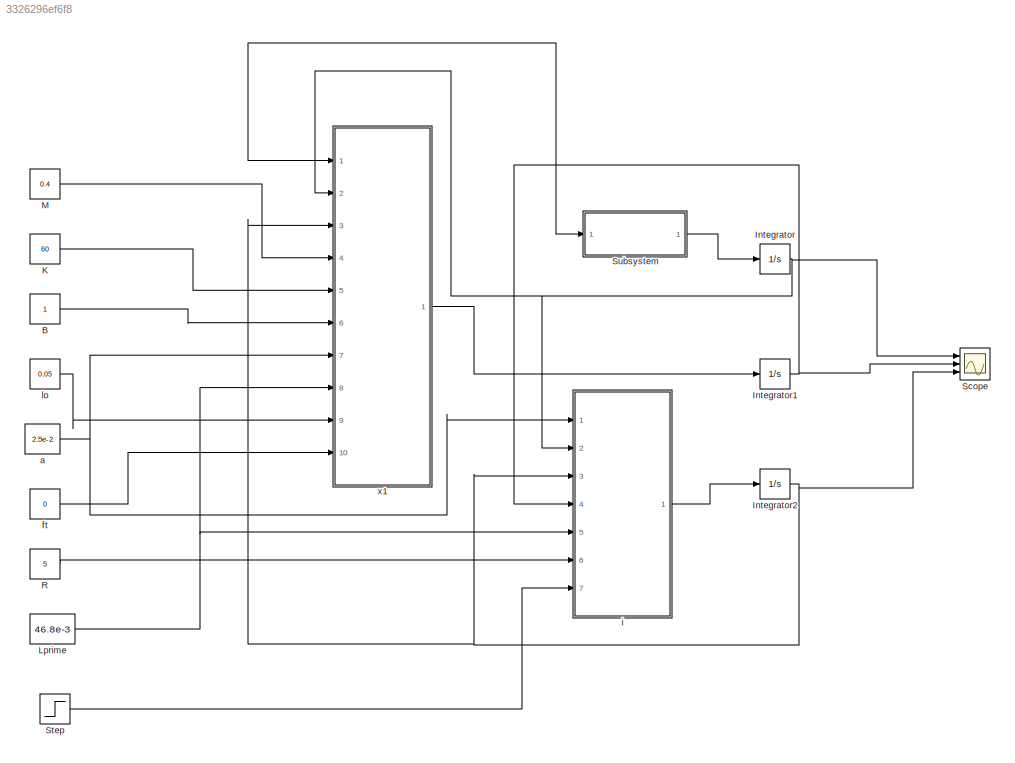
MODEL slx_3326296ef6f8
KIND model
CONFIG AbsTol = auto
CONFIG EnableMultiTasking = off
CONFIG FixedStep = auto
CONFIG MaxStep = auto
CONFIG MinStep = auto
CONFIG RelTol = 1e-3
CONFIG SampleTimeConstraint = Unconstrained
CONFIG Solver = VariableStepAuto
CONFIG SolverName = VariableStepAuto
CONFIG StartTime = 0.0
CONFIG StopTime = 10.0
BLOCK [Constant] B
BLOCK [Integrator] Integrator
  Ports = [1, 1]
BLOCK [Integrator] Integrator1
  Ports = [1, 1]
BLOCK [Integrator] Integrator2
  Ports = [1, 1]
BLOCK [Constant] K
  Value = 60
BLOCK [Constant] Lprime
  Value = 46.8e-3
BLOCK [Constant] M
  Value = 0.4
BLOCK [Constant] R
  Value = 5
BLOCK [Scope] Scope
  NumInputPorts = 3
  Ports = [3]
  ScopeSpecificationString = Simulink.scopes.TimeScopeBlockCfg('CurrentConfiguration', extmgr.ConfigurationSet(extmgr.Configuration('Core','General UI',true),extmgr.Configuration('Core','Source UI',true),extmgr.Configuration('Sources','WiredSimulink',true),extmgr.Configuration('Visuals','Time Domain',true,'SerializedDisplays',{struct('MinYLimReal','-1.00000','MaxYLimReal','1.00000','YLabelReal','','MinYLimMag','0.00000','MaxY...<+1387ch>
BLOCK [Step] Step
  SampleTime = 0
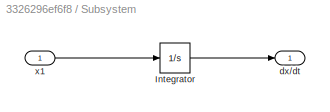
BLOCK [SubSystem] Subsystem
  Ports = [1, 1]
  RequestExecContextInheritance = off
  Variant = off
BLOCK [Integrator] Subsystem/Integrator
  Ports = [1, 1]
BLOCK [Outport] Subsystem/dx//dt
  IconDisplay = Port number
BLOCK [Inport] Subsystem/x1
  IconDisplay = Port number
BLOCK [Constant] a
  Value = 2.5e-2
BLOCK [Constant] ft
  Value = 0
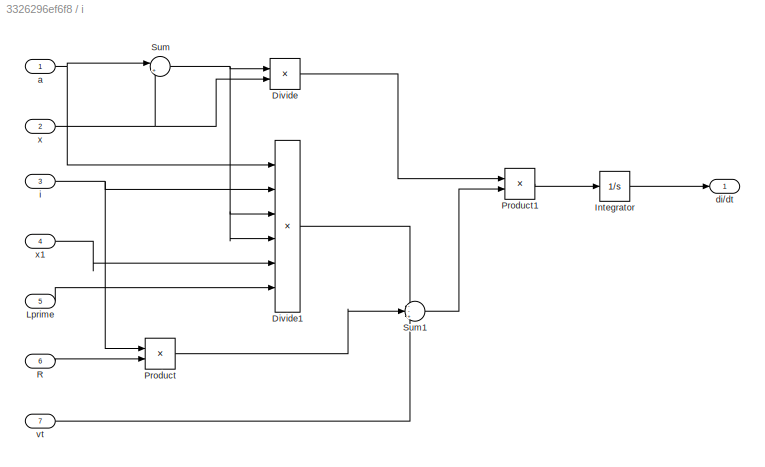
BLOCK [SubSystem] i
  Ports = [7, 1]
  RequestExecContextInheritance = off
  Variant = off
BLOCK [Product] i/Divide
  InputSameDT = off
  Inputs = */
  OutDataTypeStr = Inherit: Inherit via internal rule
  Ports = [2, 1]
  RndMeth = Floor
  SaturateOnIntegerOverflow = off
BLOCK [Product] i/Divide1
  InputSameDT = off
  Inputs = **//**
  OutDataTypeStr = Inherit: Inherit via internal rule
  Ports = [6, 1]
  RndMeth = Floor
  SaturateOnIntegerOverflow = off
BLOCK [Integrator] i/Integrator
  Ports = [1, 1]
BLOCK [Inport] i/Lprime
  IconDisplay = Port number
  Port = 5
BLOCK [Product] i/Product
  InputSameDT = off
  OutDataTypeStr = Inherit: Inherit via internal rule
  Ports = [2, 1]
  RndMeth = Floor
  SaturateOnIntegerOverflow = off
BLOCK [Product] i/Product1
  InputSameDT = off
  OutDataTypeStr = Inherit: Inherit via internal rule
  Ports = [2, 1]
  RndMeth = Floor
  SaturateOnIntegerOverflow = off
BLOCK [Inport] i/R
  IconDisplay = Port number
  Port = 6
BLOCK [Sum] i/Sum
  IconShape = round
  InputSameDT = off
  Inputs = |++
  OutDataTypeStr = Inherit: Inherit via internal rule
  Ports = [2, 1]
  SaturateOnIntegerOverflow = off
BLOCK [Sum] i/Sum1
  IconShape = round
  InputSameDT = off
  Inputs = --+
  OutDataTypeStr = Inherit: Inherit via internal rule
  Ports = [3, 1]
  SaturateOnIntegerOverflow = off
BLOCK [Inport] i/a
  IconDisplay = Port number
BLOCK [Outport] i/di//dt
  IconDisplay = Port number
BLOCK [Inport] i/i
  IconDisplay = Port number
  Port = 3
BLOCK [Inport] i/vt
  IconDisplay = Port number
  Port = 7
BLOCK [Inport] i/x
  IconDisplay = Port number
  Port = 2
BLOCK [Inport] i/x1
  IconDisplay = Port number
  Port = 4
BLOCK [Constant] lo
  Value = 0.05
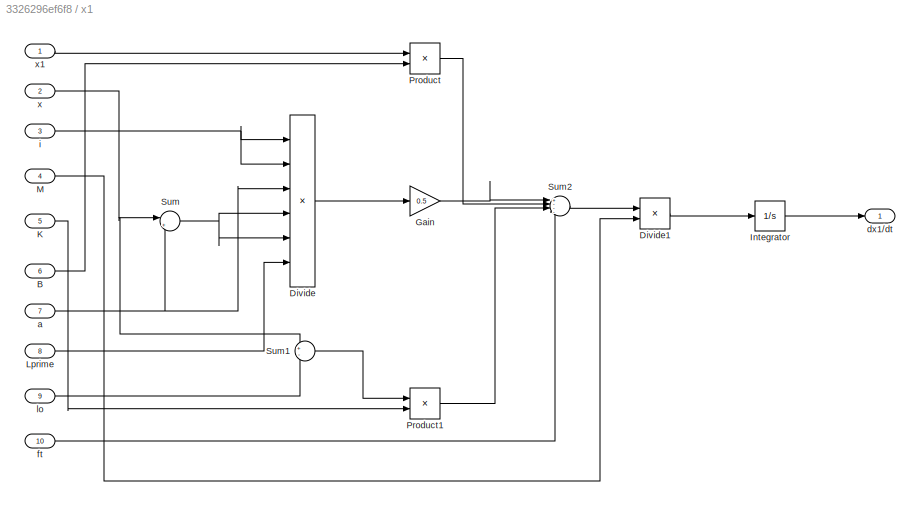
BLOCK [SubSystem] x1
  Ports = [10, 1]
  RequestExecContextInheritance = off
  Variant = off
BLOCK [Inport] x1/B
  IconDisplay = Port number
  Port = 6
BLOCK [Product] x1/Divide
  InputSameDT = off
  Inputs = ***//*
  OutDataTypeStr = Inherit: Inherit via internal rule
  Ports = [6, 1]
  RndMeth = Floor
  SaturateOnIntegerOverflow = off
BLOCK [Product] x1/Divide1
  InputSameDT = off
  Inputs = */
  OutDataTypeStr = Inherit: Inherit via internal rule
  Ports = [2, 1]
  RndMeth = Floor
  SaturateOnIntegerOverflow = off
BLOCK [Gain] x1/Gain
  Gain = 0.5
  OutDataTypeStr = Inherit: Inherit via internal rule
  ParamDataTypeStr = Inherit: Inherit via internal rule
  SaturateOnIntegerOverflow = off
BLOCK [Integrator] x1/Integrator
  Ports = [1, 1]
BLOCK [Inport] x1/K
  IconDisplay = Port number
  Port = 5
BLOCK [Inport] x1/Lprime
  IconDisplay = Port number
  Port = 8
BLOCK [Inport] x1/M
  IconDisplay = Port number
  Port = 4
BLOCK [Product] x1/Product
  InputSameDT = off
  OutDataTypeStr = Inherit: Inherit via internal rule
  Ports = [2, 1]
  RndMeth = Floor
  SaturateOnIntegerOverflow = off
BLOCK [Product] x1/Product1
  InputSameDT = off
  OutDataTypeStr = Inherit: Inherit via internal rule
  Ports = [2, 1]
  RndMeth = Floor
  SaturateOnIntegerOverflow = off
BLOCK [Sum] x1/Sum
  IconShape = round
  InputSameDT = off
  Inputs = |++
  OutDataTypeStr = Inherit: Inherit via internal rule
  Ports = [2, 1]
  SaturateOnIntegerOverflow = off
BLOCK [Sum] x1/Sum1
  IconShape = round
  InputSameDT = off
  Inputs = +-
  OutDataTypeStr = Inherit: Inherit via internal rule
  Ports = [2, 1]
  SaturateOnIntegerOverflow = off
BLOCK [Sum] x1/Sum2
  IconShape = round
  InputSameDT = off
  Inputs = +---
  OutDataTypeStr = Inherit: Inherit via internal rule
  Ports = [4, 1]
  SaturateOnIntegerOverflow = off
BLOCK [Inport] x1/a
  IconDisplay = Port number
  Port = 7
BLOCK [Outport] x1/dx1//dt
  IconDisplay = Port number
BLOCK [Inport] x1/ft
  IconDisplay = Port number
  Port = 10
BLOCK [Inport] x1/i
  IconDisplay = Port number
  Port = 3
BLOCK [Inport] x1/lo
  IconDisplay = Port number
  Port = 9
BLOCK [Inport] x1/x
  IconDisplay = Port number
  Port = 2
BLOCK [Inport] x1/x1
  IconDisplay = Port number
LINE B:1 -> x1:6
NET Integrator1:1 -> Scope:2, Subsystem:1, i:4, x1:1
NET Integrator2:1 -> Scope:3, i:3, x1:3
NET Integrator:1 -> Scope:1, i:2, x1:2
LINE K:1 -> x1:5
NET Lprime:1 -> i:5, x1:8
LINE M:1 -> x1:4
LINE R:1 -> i:6
LINE Step:1 -> i:7
LINE Subsystem/Integrator:1 -> Subsystem/dx//dt:1
LINE Subsystem/x1:1 -> Subsystem/Integrator:1
LINE Subsystem:1 -> Integrator:1
NET a:1 -> i:1, x1:7
LINE ft:1 -> x1:10
LINE i/Divide1:1 -> i/Sum1:1
LINE i/Divide:1 -> i/Product1:1
LINE i/Integrator:1 -> i/di//dt:1
LINE i/Lprime:1 -> i/Divide1:6
LINE i/Product1:1 -> i/Integrator:1
LINE i/Product:1 -> i/Sum1:2
LINE i/R:1 -> i/Product:2
LINE i/Sum1:1 -> i/Product1:2
NET i/Sum:1 -> i/Divide1:3, i/Divide1:4, i/Divide:1
NET i/a:1 -> i/Divide1:1, i/Sum:1
NET i/i:1 -> i/Divide1:2, i/Product:1
LINE i/vt:1 -> i/Sum1:3
LINE i/x1:1 -> i/Divide1:5
NET i/x:1 -> i/Divide:2, i/Sum:2
LINE i:1 -> Integrator2:1
LINE lo:1 -> x1:9
LINE x1/B:1 -> x1/Product:2
LINE x1/Divide1:1 -> x1/Integrator:1
LINE x1/Divide:1 -> x1/Gain:1
LINE x1/Gain:1 -> x1/Sum2:1
LINE x1/Integrator:1 -> x1/dx1//dt:1
LINE x1/K:1 -> x1/Product1:2
LINE x1/Lprime:1 -> x1/Divide:6
LINE x1/M:1 -> x1/Divide1:2
LINE x1/Product1:1 -> x1/Sum2:3
LINE x1/Product:1 -> x1/Sum2:2
LINE x1/Sum1:1 -> x1/Product1:1
LINE x1/Sum2:1 -> x1/Divide1:1
NET x1/Sum:1 -> x1/Divide:4, x1/Divide:5
NET x1/a:1 -> x1/Divide:3, x1/Sum:2
LINE x1/ft:1 -> x1/Sum2:4
NET x1/i:1 -> x1/Divide:1, x1/Divide:2
LINE x1/lo:1 -> x1/Sum1:2
LINE x1/x1:1 -> x1/Product:1
NET x1/x:1 -> x1/Sum1:1, x1/Sum:1
LINE x1:1 -> Integrator1:1
note: NET lines group one-source signal fan-out (src -> all destinations, sorted); 1:1 wires keep LINE
